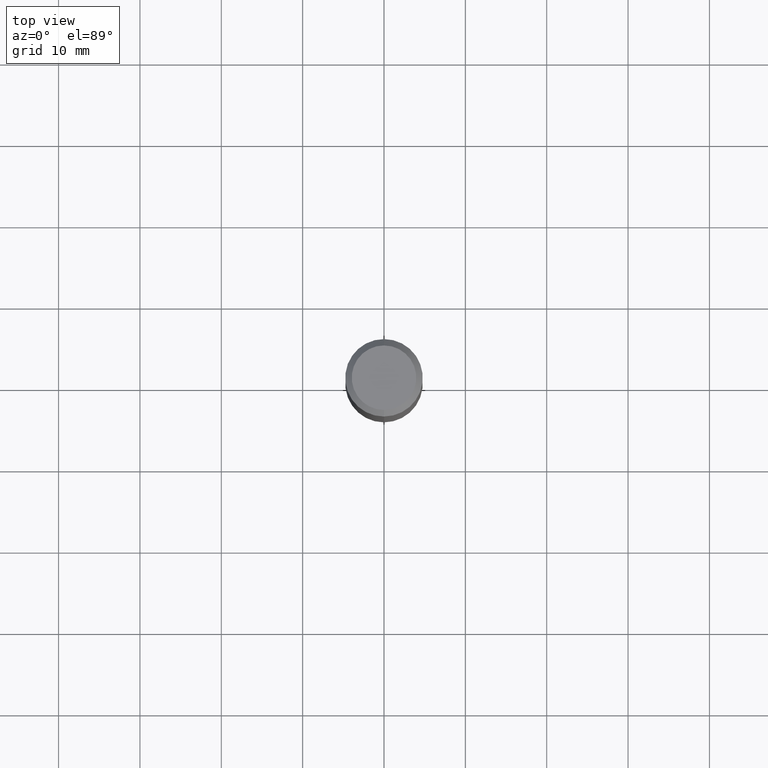
[diagram: clean part render]
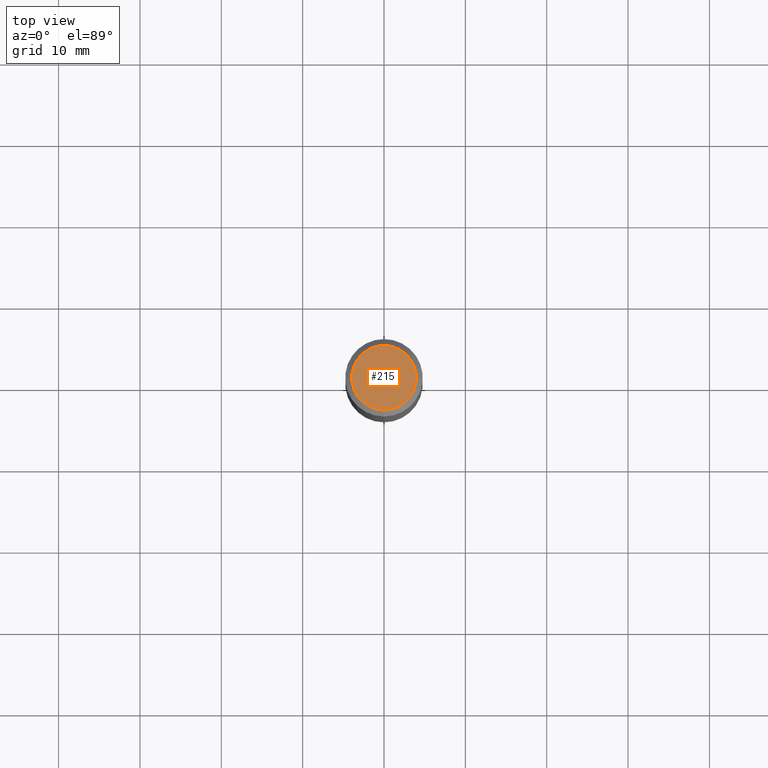
[diagram: same view with one face highlighted and labeled with its STEP entity id]
A machine part, top view. The second image highlights one B-rep face of the part: STEP entity #215.
In plain terms, the highlighted planar face has unit normal (0, -0, -1).
Its self-contained STEP definition (entity closure, byte-faithful):
#20 = CIRCLE ( 'NONE', #282, 0.1562500000000004718 ) ;
#47 = DIRECTION ( 'NONE',  ( -2.680706346625087460E-29, 3.154607792043817320E-15, 1.000000000000000000 ) ) ;
#53 = VERTEX_POINT ( 'NONE', #312 ) ;
#61 = EDGE_CURVE ( 'NONE', #408, #53, #255, .T. ) ;
#68 = AXIS2_PLACEMENT_3D ( 'NONE', #101, #348, #311 ) ;
#88 = EDGE_LOOP ( 'NONE', ( #119, #145 ) ) ;
#101 = CARTESIAN_POINT ( 'NONE',  ( -3.397982428467407694E-30, -4.866104238714468673E-16, 7.122683174012249869E-18 ) ) ;
#119 = ORIENTED_EDGE ( 'NONE', *, *, #61, .T. ) ;
#145 = ORIENTED_EDGE ( 'NONE', *, *, #363, .T. ) ;
#148 = CARTESIAN_POINT ( 'NONE',  ( 1.200196710227327485E-15, 0.1562500000000000000, -4.857847843328356839E-16 ) ) ;
#169 = DIRECTION ( 'NONE',  ( 6.982962677686265922E-15, 1.000000000000000000, -3.154607792043817320E-15 ) ) ;
#200 = PLANE ( 'NONE',  #242 ) ;
#215 = ADVANCED_FACE ( 'NONE', ( #359 ), #200, .F. ) ;
#242 = AXIS2_PLACEMENT_3D ( 'NONE', #260, #394, #169 ) ;
#255 = CIRCLE ( 'NONE', #68, 0.1562500000000004718 ) ;
#260 = CARTESIAN_POINT ( 'NONE',  ( 1.091087918388478976E-15, 0.1562500000000000000, -4.797841986534229262E-16 ) ) ;
#282 = AXIS2_PLACEMENT_3D ( 'NONE', #324, #47, #293 ) ;
#293 = DIRECTION ( 'NONE',  ( -6.982962677686266711E-15, -1.000000000000000000, 3.154607792043817714E-15 ) ) ;
#311 = DIRECTION ( 'NONE',  ( -6.982962677686266711E-15, -1.000000000000000000, 3.154607792043817714E-15 ) ) ;
#312 = CARTESIAN_POINT ( 'NONE',  ( -1.179148093366988298E-15, -0.1562500000000009714, 5.000301506808602607E-16 ) ) ;
#324 = CARTESIAN_POINT ( 'NONE',  ( -3.397982428467407694E-30, -4.866104238714468673E-16, 7.122683174012249869E-18 ) ) ;
#348 = DIRECTION ( 'NONE',  ( -2.680706346625087460E-29, 3.154607792043817320E-15, 1.000000000000000000 ) ) ;
#359 = FACE_OUTER_BOUND ( 'NONE', #88, .T. ) ;
#363 = EDGE_CURVE ( 'NONE', #53, #408, #20, .T. ) ;
#394 = DIRECTION ( 'NONE',  ( 2.680706346625086899E-29, -3.154607792043817320E-15, -1.000000000000000000 ) ) ;
#408 = VERTEX_POINT ( 'NONE', #148 ) ;